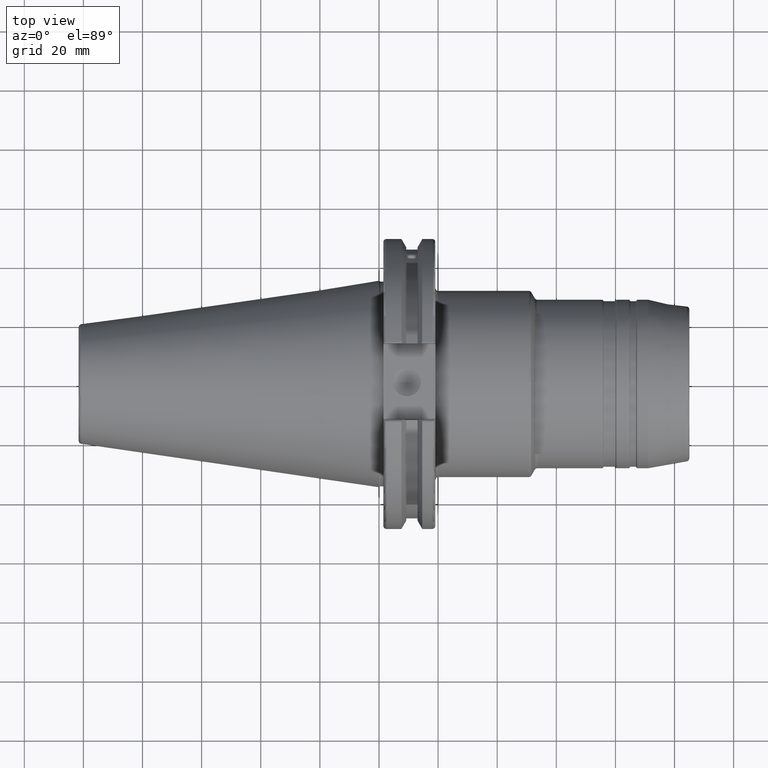
[diagram: clean part render]
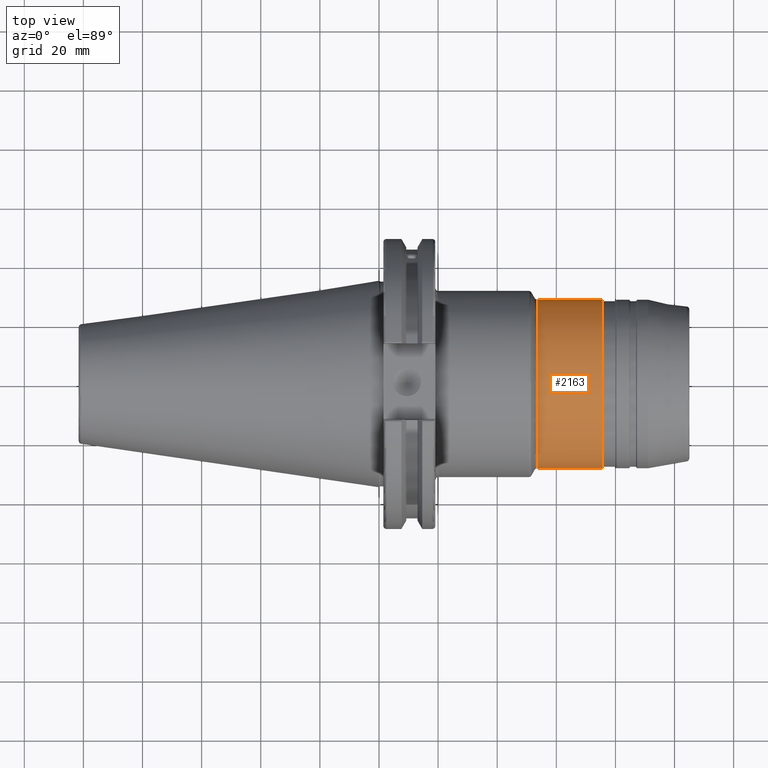
[diagram: same view with one face highlighted and labeled with its STEP entity id]
A machine part, top view. The second image highlights one B-rep face of the part: STEP entity #2163.
In plain terms, the highlighted cylindrical surface (bore or boss wall) has radius 28.5 mm, axis along (1, 0, 0).
Its self-contained STEP definition (entity closure, byte-faithful):
#159=LINE('',#3416,#265);
#265=VECTOR('',#2737,28.5);
#367=CYLINDRICAL_SURFACE('',#2352,28.5);
#412=FACE_OUTER_BOUND('',#522,.T.);
#522=EDGE_LOOP('',(#1552,#1553,#1554,#1555,#1556,#1557,#1558,#1559));
#690=CIRCLE('',#2349,28.5);
#691=CIRCLE('',#2350,28.5);
#692=CIRCLE('',#2351,28.5);
#693=CIRCLE('',#2353,28.5);
#694=CIRCLE('',#2354,28.5);
#695=CIRCLE('',#2355,28.5);
#868=VERTEX_POINT('',#3407);
#869=VERTEX_POINT('',#3409);
#870=VERTEX_POINT('',#3411);
#871=VERTEX_POINT('',#3415);
#872=VERTEX_POINT('',#3417);
#873=VERTEX_POINT('',#3419);
#1136=EDGE_CURVE('',#868,#869,#690,.T.);
#1137=EDGE_CURVE('',#869,#870,#691,.T.);
#1138=EDGE_CURVE('',#870,#868,#692,.T.);
#1139=EDGE_CURVE('',#869,#871,#159,.T.);
#1140=EDGE_CURVE('',#872,#871,#693,.T.);
#1141=EDGE_CURVE('',#873,#872,#694,.T.);
#1142=EDGE_CURVE('',#871,#873,#695,.T.);
#1552=ORIENTED_EDGE('',*,*,#1138,.F.);
#1553=ORIENTED_EDGE('',*,*,#1137,.F.);
#1554=ORIENTED_EDGE('',*,*,#1139,.T.);
#1555=ORIENTED_EDGE('',*,*,#1140,.F.);
#1556=ORIENTED_EDGE('',*,*,#1141,.F.);
#1557=ORIENTED_EDGE('',*,*,#1142,.F.);
#1558=ORIENTED_EDGE('',*,*,#1139,.F.);
#1559=ORIENTED_EDGE('',*,*,#1136,.F.);
#2163=ADVANCED_FACE('',(#412),#367,.T.);
#2349=AXIS2_PLACEMENT_3D('',#3410,#2729,#2730);
#2350=AXIS2_PLACEMENT_3D('',#3412,#2731,#2732);
#2351=AXIS2_PLACEMENT_3D('',#3413,#2733,#2734);
#2352=AXIS2_PLACEMENT_3D('',#3414,#2735,#2736);
#2353=AXIS2_PLACEMENT_3D('',#3418,#2738,#2739);
#2354=AXIS2_PLACEMENT_3D('',#3420,#2740,#2741);
#2355=AXIS2_PLACEMENT_3D('',#3421,#2742,#2743);
#2729=DIRECTION('center_axis',(1.,0.,0.));
#2730=DIRECTION('ref_axis',(0.,-1.,1.83697019872103E-16));
#2731=DIRECTION('center_axis',(1.,0.,0.));
#2732=DIRECTION('ref_axis',(0.,-1.,1.83697019872103E-16));
#2733=DIRECTION('center_axis',(1.,0.,0.));
#2734=DIRECTION('ref_axis',(0.,-1.,1.83697019872103E-16));
#2735=DIRECTION('center_axis',(1.,0.,0.));
#2736=DIRECTION('ref_axis',(0.,1.,0.));
#2737=DIRECTION('',(-1.,0.,0.));
#2738=DIRECTION('center_axis',(-1.,0.,0.));
#2739=DIRECTION('ref_axis',(0.,-1.,1.83697019872103E-16));
#2740=DIRECTION('center_axis',(-1.,0.,0.));
#2741=DIRECTION('ref_axis',(0.,-1.,1.83697019872103E-16));
#2742=DIRECTION('center_axis',(-1.,0.,0.));
#2743=DIRECTION('ref_axis',(0.,-1.,1.83697019872103E-16));
#3407=CARTESIAN_POINT('',(75.4803847577293,-3.49024337756996E-15,28.5));
#3409=CARTESIAN_POINT('',(75.4803847577293,-28.5,-3.49024337756996E-15));
#3410=CARTESIAN_POINT('Origin',(75.4803847577293,0.,0.));
#3411=CARTESIAN_POINT('',(75.4803847577293,28.5,-1.74512168878498E-15));
#3412=CARTESIAN_POINT('Origin',(75.4803847577293,0.,0.));
#3413=CARTESIAN_POINT('Origin',(75.4803847577293,0.,0.));
#3414=CARTESIAN_POINT('Origin',(64.3556624327026,0.,0.));
#3415=CARTESIAN_POINT('',(53.5773502691896,-28.5,-3.49024337756996E-15));
#3416=CARTESIAN_POINT('',(64.3556624327026,-28.5,-3.49024337756996E-15));
#3417=CARTESIAN_POINT('',(53.5773502691896,28.5,-8.72560844392489E-15));
#3418=CARTESIAN_POINT('Origin',(53.5773502691896,0.,0.));
#3419=CARTESIAN_POINT('',(53.5773502691896,-3.49024337756996E-15,28.5));
#3420=CARTESIAN_POINT('Origin',(53.5773502691896,0.,0.));
#3421=CARTESIAN_POINT('Origin',(53.5773502691896,0.,0.));